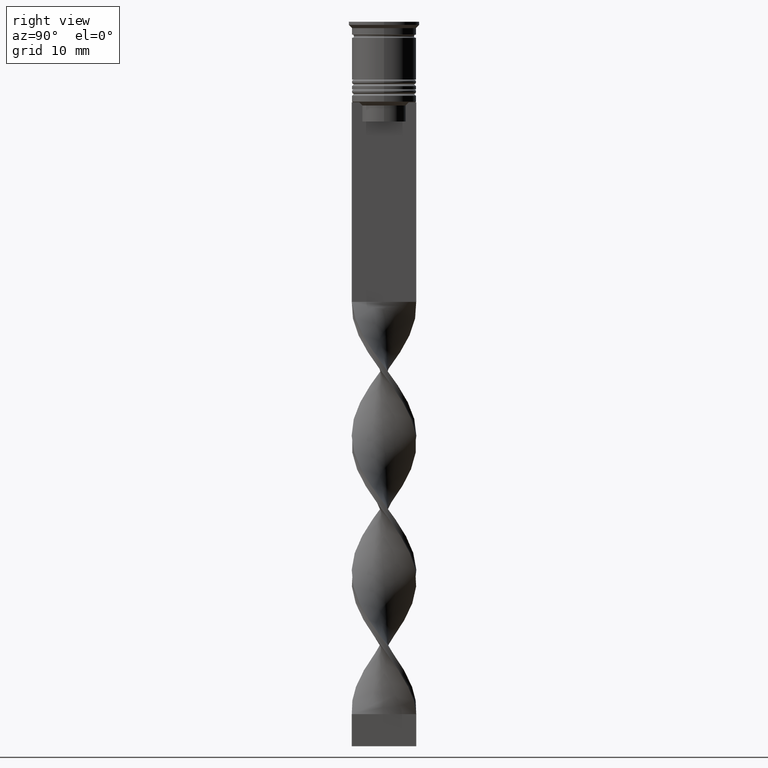
[diagram: clean part render]
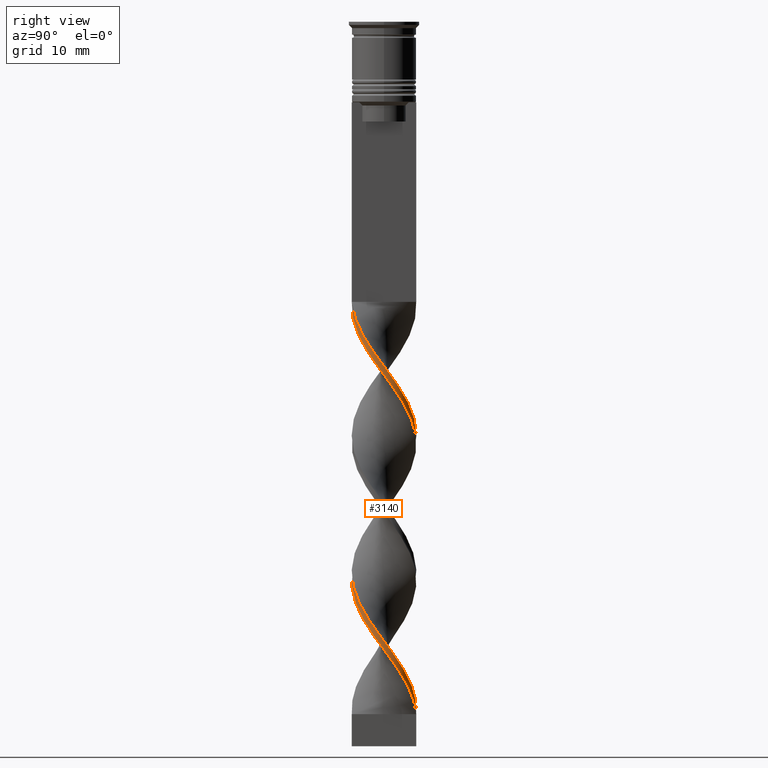
[diagram: same view with one face highlighted and labeled with its STEP entity id]
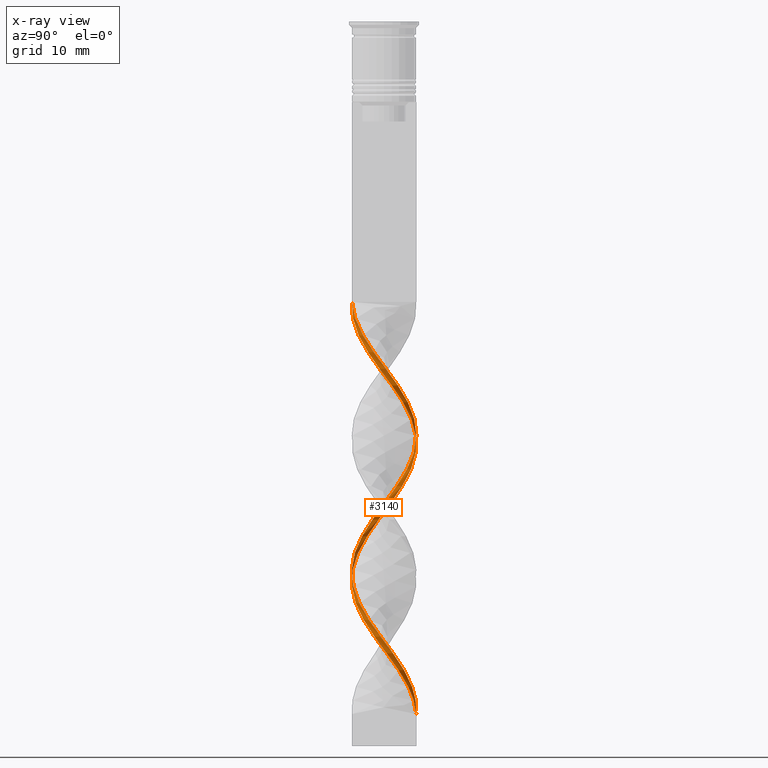
[diagram: x-ray of the same camera — body ghosted, the highlighted face saturated]
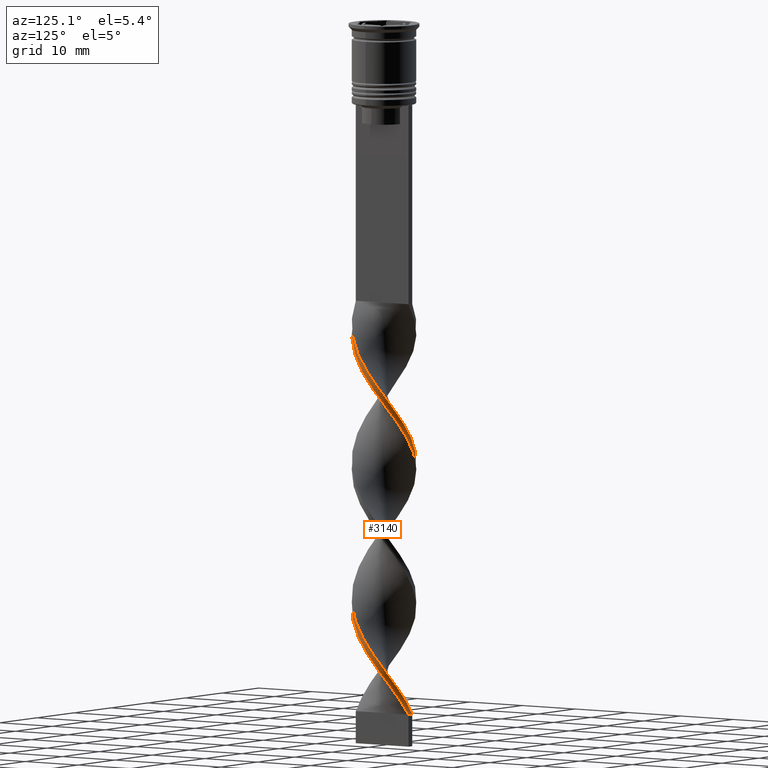
[diagram: same view with one face highlighted and labeled with its STEP entity id]
A machine part, right view. The second image highlights one B-rep face of the part: STEP entity #3140.
The next image is the same camera in x-ray: the body ghosted, the highlighted face saturated — about 0% of this face is hidden behind the body in this view.
A second angle (auxiliary view) of the same face is appended — the face is thin or edge-on in the first view.
In plain terms, the highlighted face is a freeform B-spline surface patch.
Its self-contained STEP definition (entity closure, byte-faithful):
#4 = CARTESIAN_POINT ( 'NONE',  ( 1.880887847392238132, 4.659641714287932501, -61.55128205128204399 ) ) ;
#5 = CARTESIAN_POINT ( 'NONE',  ( -3.436045048790596468, 3.716969558312887667, -70.57692307692306599 ) ) ;
#7 = CARTESIAN_POINT ( 'NONE',  ( -0.5000000000000000000, -4.999999999999999112, -43.50000000000000000 ) ) ;
#22 = CARTESIAN_POINT ( 'NONE',  ( 4.104038128678484831, 2.962961240565976428, -101.7564102564102484 ) ) ;
#42 = CARTESIAN_POINT ( 'NONE',  ( 0.5000000000000000000, -4.999999999999999112, -43.50000000000000000 ) ) ;
#61 = CARTESIAN_POINT ( 'NONE',  ( 3.830886956102703245, 3.251815666602606569, -100.9358974358974308 ) ) ;
#65 = CARTESIAN_POINT ( 'NONE',  ( -3.275699201900568625, -3.859023582904236527, -82.06410256410255499 ) ) ;
#78 = CARTESIAN_POINT ( 'NONE',  ( 4.104038128678483943, -2.962961240565977761, -91.91025641025643722 ) ) ;
#82 = CARTESIAN_POINT ( 'NONE',  ( -4.104038128678487496, -2.962961240565973764, -80.42307692307691980 ) ) ;
#88 = CARTESIAN_POINT ( 'NONE',  ( -2.941357917118426535, -4.074115069975901449, -81.24358974358973740 ) ) ;
#99 = CARTESIAN_POINT ( 'NONE',  ( 1.880887847392237244, -4.659641714287933389, -46.78205128205127750 ) ) ;
#104 = CARTESIAN_POINT ( 'NONE',  ( -2.256988544190328572, -4.530813501584091796, -83.70512820512820440 ) ) ;
#111 = CARTESIAN_POINT ( 'NONE',  ( 3.689868665289525396, -3.410992411735107588, -91.08974358974359120 ) ) ;
#121 = CARTESIAN_POINT ( 'NONE',  ( 4.497778769905805163, -2.240532556555385746, -51.70512820512820440 ) ) ;
#124 = CARTESIAN_POINT ( 'NONE',  ( 4.852383656948341617, 1.305516313869969469, -56.62820512820513130 ) ) ;
#130 = CARTESIAN_POINT ( 'NONE',  ( 3.830886956102703245, 3.251815666602606569, -58.26923076923076650 ) ) ;
#140 = CARTESIAN_POINT ( 'NONE',  ( 5.010902036907449286, -0.7163302668880181523, -95.19230769230769340 ) ) ;
#144 = CARTESIAN_POINT ( 'NONE',  ( 5.010902036907447510, 0.7163302668880174862, -98.47435897435896379 ) ) ;
#161 = CARTESIAN_POINT ( 'NONE',  ( 1.682049230150816088, 4.735051254986480274, -63.19230769230768630 ) ) ;
#174 = CARTESIAN_POINT ( 'NONE',  ( 4.903276030362607507, 1.099037838325641392, -54.98717948717948190 ) ) ;
#185 = CARTESIAN_POINT ( 'NONE',  ( 4.852383656948341617, 1.305516313869969469, -99.29487179487178139 ) ) ;
#206 = CARTESIAN_POINT ( 'NONE',  ( -0.4999999999999993339, 4.999999999999999112, -107.5000000000000000 ) ) ;
#238 = CARTESIAN_POINT ( 'NONE',  ( -3.830886956102703245, 3.251815666602607013, -71.39743589743588359 ) ) ;
#253 = CARTESIAN_POINT ( 'NONE',  ( 2.941357917118423870, -4.074115069975903225, -91.08974358974359120 ) ) ;
#271 = CARTESIAN_POINT ( 'NONE',  ( 0.1071099161113048398, 5.060710991611130360, -64.01282051282051100 ) ) ;
#273 = CARTESIAN_POINT ( 'NONE',  ( -5.010902036907449286, -0.7163302668880155988, -77.14102564102563520 ) ) ;
#291 = CARTESIAN_POINT ( 'NONE',  ( 3.275699201900567736, -3.859023582904237415, -47.60256410256408799 ) ) ;
#292 = CARTESIAN_POINT ( 'NONE',  ( -3.275699201900568625, -3.859023582904236527, -82.06410256410255499 ) ) ;
#307 = CARTESIAN_POINT ( 'NONE',  ( -2.446670785446251273, 4.431260581638920115, -68.93589743589743080 ) ) ;
#347 = CARTESIAN_POINT ( 'NONE',  ( 1.682049230150816088, 4.735051254986480274, -63.19230769230768630 ) ) ;
#360 = CARTESIAN_POINT ( 'NONE',  ( 5.023812710617931110, -0.1063289642275889874, -96.01282051282051100 ) ) ;
#363 = CARTESIAN_POINT ( 'NONE',  ( 5.010902036907447510, 0.7163302668880174862, -55.80769230769230660 ) ) ;
#368 = CARTESIAN_POINT ( 'NONE',  ( 1.682049230150814534, -4.735051254986480274, -45.14102564102563520 ) ) ;
#378 = CARTESIAN_POINT ( 'NONE',  ( 0.7111074127247624110, -4.974366919274038068, -45.14102564102563520 ) ) ;
#381 = CARTESIAN_POINT ( 'NONE',  ( 1.880887847392237244, -4.659641714287933389, -46.78205128205127750 ) ) ;
#385 = VERTEX_POINT ( 'NONE', #2832 ) ;
#387 = CARTESIAN_POINT ( 'NONE',  ( 4.104038128678484831, -2.962961240565978205, -49.24358974358974450 ) ) ;
#397 = CARTESIAN_POINT ( 'NONE',  ( 4.852383656948341617, -1.305516313869971246, -94.37179487179486159 ) ) ;
#403 = CARTESIAN_POINT ( 'NONE',  ( 4.225728863414809133, -2.786661774892328136, -50.88461538461537970 ) ) ;
#411 = CARTESIAN_POINT ( 'NONE',  ( 4.769828676396803857, 1.694403338218442689, -55.80769230769230660 ) ) ;
#420 = CARTESIAN_POINT ( 'NONE',  ( 2.446670785446252161, -4.431260581638920115, -47.60256410256408799 ) ) ;
#424 = CARTESIAN_POINT ( 'NONE',  ( -4.693865276989234836, -1.894702360851920231, -78.78205128205127039 ) ) ;
#430 = CARTESIAN_POINT ( 'NONE',  ( -1.682049230150812980, 4.735051254986481162, -66.47435897435896379 ) ) ;
#440 = CARTESIAN_POINT ( 'NONE',  ( 4.398951702833859834, 2.428831800708949995, -58.26923076923076650 ) ) ;
#449 = CARTESIAN_POINT ( 'NONE',  ( 4.225728863414809133, 2.786661774892327692, -57.44871794871794890 ) ) ;
#527 = CARTESIAN_POINT ( 'NONE',  ( 4.693865276989234836, -1.894702360851923340, -93.55128205128204399 ) ) ;
#530 = EDGE_LOOP ( 'NONE', ( #3200, #2994, #3588, #2436 ) ) ;
#542 = CARTESIAN_POINT ( 'NONE',  ( -0.7111074127247609677, 4.974366919274038956, -66.47435897435896379 ) ) ;
#554 = CARTESIAN_POINT ( 'NONE',  ( 4.104038128678483943, -2.962961240565977761, -49.24358974358973740 ) ) ;
#571 = CARTESIAN_POINT ( 'NONE',  ( 5.036723384328412934, -0.5036723384328417596, -96.83333333333332860 ) ) ;
#592 = CARTESIAN_POINT ( 'NONE',  ( 4.903276030362607507, 1.099037838325641392, -54.98717948717948190 ) ) ;
#593 = CARTESIAN_POINT ( 'NONE',  ( 4.903276030362607507, -1.099037838325642946, -96.01282051282051100 ) ) ;
#643 = CARTESIAN_POINT ( 'NONE',  ( -2.446670785446253493, -4.431260581638919227, -82.06410256410255499 ) ) ;
#648 = CARTESIAN_POINT ( 'NONE',  ( 2.446670785446252161, -4.431260581638919227, -47.60256410256409509 ) ) ;
#662 = CARTESIAN_POINT ( 'NONE',  ( -0.4999999999999993339, 4.999999999999999112, -107.5000000000000000 ) ) ;
#666 = CARTESIAN_POINT ( 'NONE',  ( -2.941357917118423870, 4.074115069975903225, -69.75641025641024839 ) ) ;
#671 = CARTESIAN_POINT ( 'NONE',  ( -1.107109916111301606, 4.939289008388868751, -65.65384615384614619 ) ) ;
#682 = CARTESIAN_POINT ( 'NONE',  ( -3.275699201900567736, 3.859023582904237415, -68.93589743589743080 ) ) ;
#687 = CARTESIAN_POINT ( 'NONE',  ( 3.436045048790597800, -3.716969558312886335, -91.91025641025643722 ) ) ;
#693 = CARTESIAN_POINT ( 'NONE',  ( -2.766343873045446600, 4.194918542244165494, -68.11538461538459899 ) ) ;
#705 = CARTESIAN_POINT ( 'NONE',  ( 4.769828676396803857, 1.694403338218442912, -98.47435897435896379 ) ) ;
#710 = CARTESIAN_POINT ( 'NONE',  ( 0.5000000000000006661, 4.999999999999999112, -64.83333333333332860 ) ) ;
#726 = CARTESIAN_POINT ( 'NONE',  ( 1.315104909338224326, 4.888022846936946664, -105.0384615384615330 ) ) ;
#729 = CARTESIAN_POINT ( 'NONE',  ( -1.682049230150818975, -4.735051254986478497, -84.52564102564103621 ) ) ;
#735 = CARTESIAN_POINT ( 'NONE',  ( -4.693865276989233060, 1.894702360851926004, -72.21794871794871540 ) ) ;
#736 = VERTEX_POINT ( 'NONE', #2180 ) ;
#742 = CARTESIAN_POINT ( 'NONE',  ( 3.275699201900568180, 3.859023582904236527, -60.73076923076922640 ) ) ;
#753 = CARTESIAN_POINT ( 'NONE',  ( 1.107109916111302717, -4.939289008388868751, -86.98717948717948900 ) ) ;
#765 = VECTOR ( 'NONE', #2116, 1000.000000000000000 ) ;
#796 = CARTESIAN_POINT ( 'NONE',  ( -4.225728863414807357, 2.786661774892329912, -72.21794871794871540 ) ) ;
#813 = CARTESIAN_POINT ( 'NONE',  ( 3.436045048790597800, -3.716969558312886335, -91.91025641025643722 ) ) ;
#819 = CARTESIAN_POINT ( 'NONE',  ( 3.830886956102703245, 3.251815666602606569, -100.9358974358974308 ) ) ;
#831 = CARTESIAN_POINT ( 'NONE',  ( 0.7111074127247642984, 4.974366919274038068, -63.19230769230768630 ) ) ;
#832 = CARTESIAN_POINT ( 'NONE',  ( -1.315104909338220551, 4.888022846936948440, -67.29487179487178139 ) ) ;
#848 = CARTESIAN_POINT ( 'NONE',  ( -2.256988544190325019, 4.530813501584093572, -67.29487179487178139 ) ) ;
#849 = CARTESIAN_POINT ( 'NONE',  ( -5.036723384328412934, 0.5036723384328424258, -75.49999999999998579 ) ) ;
#866 = CARTESIAN_POINT ( 'NONE',  ( 2.256988544190325907, -4.530813501584092684, -45.96153846153845279 ) ) ;
#867 = CARTESIAN_POINT ( 'NONE',  ( 1.682049230150816088, 4.735051254986480274, -105.8589743589743506 ) ) ;
#869 = CARTESIAN_POINT ( 'NONE',  ( 0.7111074127247624110, -4.974366919274038068, -45.14102564102563520 ) ) ;
#884 = CARTESIAN_POINT ( 'NONE',  ( 2.446670785446252605, 4.431260581638919227, -60.73076923076922640 ) ) ;
#918 = CARTESIAN_POINT ( 'NONE',  ( -0.1071099161113053949, -5.060710991611130360, -85.34615384615383959 ) ) ;
#923 = CARTESIAN_POINT ( 'NONE',  ( 1.107109916111304937, 4.939289008388868751, -64.01282051282051100 ) ) ;
#942 = CARTESIAN_POINT ( 'NONE',  ( -3.436045048790600909, -3.716969558312882782, -80.42307692307691980 ) ) ;
#947 = CARTESIAN_POINT ( 'NONE',  ( 5.023812710617931110, 0.1063289642275872526, -54.98717948717948190 ) ) ;
#953 = CARTESIAN_POINT ( 'NONE',  ( 3.275699201900567292, -3.859023582904237415, -90.26923076923077360 ) ) ;
#960 = CARTESIAN_POINT ( 'NONE',  ( 1.880887847392238132, 4.659641714287932501, -104.2179487179487012 ) ) ;
#964 = CARTESIAN_POINT ( 'NONE',  ( 1.315104909338222328, -4.888022846936947552, -88.62820512820512420 ) ) ;
#971 = CARTESIAN_POINT ( 'NONE',  ( -0.1071099161113053949, -5.060710991611129472, -85.34615384615385381 ) ) ;
#980 = CARTESIAN_POINT ( 'NONE',  ( 5.023812710617931110, 0.1063289642275872526, -54.98717948717948190 ) ) ;
#984 = CARTESIAN_POINT ( 'NONE',  ( 3.830886956102703245, -3.251815666602607013, -50.06410256410256210 ) ) ;
#990 = CARTESIAN_POINT ( 'NONE',  ( -5.036723384328413822, -0.5036723384328405384, -75.50000000000000000 ) ) ;
#1002 = CARTESIAN_POINT ( 'NONE',  ( 3.436045048790597800, -3.716969558312886335, -49.24358974358973740 ) ) ;
#1007 = CARTESIAN_POINT ( 'NONE',  ( 2.941357917118423870, -4.074115069975903225, -48.42307692307691269 ) ) ;
#1013 = CARTESIAN_POINT ( 'NONE',  ( 4.693865276989234836, -1.894702360851923340, -50.88461538461537970 ) ) ;
#1021 = CARTESIAN_POINT ( 'NONE',  ( 1.107109916111304715, 4.939289008388868751, -64.01282051282051100 ) ) ;
#1031 = CARTESIAN_POINT ( 'NONE',  ( -1.315104909338224548, -4.888022846936946664, -83.70512820512820440 ) ) ;
#1047 = EDGE_CURVE ( 'NONE', #1556, #736, #1882, .T. ) ;
#1048 = CARTESIAN_POINT ( 'NONE',  ( 4.852383656948341617, -1.305516313869971246, -94.37179487179486159 ) ) ;
#1064 = CARTESIAN_POINT ( 'NONE',  ( 5.036723384328413822, 0.5036723384328410935, -96.83333333333332860 ) ) ;
#1078 = CARTESIAN_POINT ( 'NONE',  ( 1.315104909338224104, 4.888022846936946664, -105.0384615384615188 ) ) ;
#1092 = CARTESIAN_POINT ( 'NONE',  ( -4.104038128678486608, -2.962961240565973764, -80.42307692307691980 ) ) ;
#1111 = CARTESIAN_POINT ( 'NONE',  ( 4.225728863414809133, 2.786661774892327248, -57.44871794871794890 ) ) ;
#1112 = CARTESIAN_POINT ( 'NONE',  ( 5.023812710617931110, 0.1063289642275872526, -97.65384615384614619 ) ) ;
#1149 = CARTESIAN_POINT ( 'NONE',  ( 1.315104909338224326, 4.888022846936946664, -62.37179487179486870 ) ) ;
#1150 = CARTESIAN_POINT ( 'NONE',  ( -4.769828676396803857, 1.694403338218443356, -73.85897435897436480 ) ) ;
#1166 = CARTESIAN_POINT ( 'NONE',  ( 1.682049230150814534, -4.735051254986480274, -45.14102564102563520 ) ) ;
#1167 = CARTESIAN_POINT ( 'NONE',  ( 2.766343873045447488, 4.194918542244164605, -104.2179487179487012 ) ) ;
#1187 = CARTESIAN_POINT ( 'NONE',  ( 3.689868665289525396, -3.410992411735107588, -48.42307692307691269 ) ) ;
#1205 = CARTESIAN_POINT ( 'NONE',  ( 4.398951702833859834, -2.428831800708950883, -92.73076923076922640 ) ) ;
#1208 = CARTESIAN_POINT ( 'NONE',  ( -3.436045048790596468, 3.716969558312887667, -70.57692307692306599 ) ) ;
#1221 = CARTESIAN_POINT ( 'NONE',  ( 4.903276030362607507, 1.099037838325641392, -97.65384615384614619 ) ) ;
#1225 = CARTESIAN_POINT ( 'NONE',  ( -1.107109916111305603, -4.939289008388868751, -85.34615384615385381 ) ) ;
#1232 = CARTESIAN_POINT ( 'NONE',  ( 2.766343873045447044, -4.194918542244165494, -89.44871794871794179 ) ) ;
#1242 = CARTESIAN_POINT ( 'NONE',  ( 4.225728863414809133, 2.786661774892327248, -100.1153846153846274 ) ) ;
#1246 = CARTESIAN_POINT ( 'NONE',  ( 4.769828676396802969, -1.694403338218443578, -95.19230769230769340 ) ) ;
#1254 = CARTESIAN_POINT ( 'NONE',  ( 0.1071099161113048537, 5.060710991611129472, -64.01282051282051100 ) ) ;
#1262 = CARTESIAN_POINT ( 'NONE',  ( 3.830886956102703245, -3.251815666602607013, -50.06410256410256210 ) ) ;
#1265 = CARTESIAN_POINT ( 'NONE',  ( 3.275699201900567736, 3.859023582904236527, -60.73076923076922640 ) ) ;
#1270 = CARTESIAN_POINT ( 'NONE',  ( 2.941357917118426091, 4.074115069975901449, -59.91025641025640880 ) ) ;
#1281 = CARTESIAN_POINT ( 'NONE',  ( 2.941357917118423870, -4.074115069975903225, -48.42307692307691269 ) ) ;
#1285 = CARTESIAN_POINT ( 'NONE',  ( 3.689868665289526728, 3.410992411735105811, -59.91025641025640880 ) ) ;
#1292 = CARTESIAN_POINT ( 'NONE',  ( -2.256988544190325019, 4.530813501584093572, -67.29487179487178139 ) ) ;
#1304 = CARTESIAN_POINT ( 'NONE',  ( 0.5000000000000006661, 4.999999999999999112, -64.83333333333332860 ) ) ;
#1314 = CARTESIAN_POINT ( 'NONE',  ( -4.497778769905805163, -2.240532556555384858, -77.96153846153845279 ) ) ;
#1333 = CARTESIAN_POINT ( 'NONE',  ( 4.903276030362607507, 1.099037838325641392, -97.65384615384614619 ) ) ;
#1379 = CARTESIAN_POINT ( 'NONE',  ( -4.497778769905805163, 2.240532556555386634, -73.03846153846153300 ) ) ;
#1393 = CARTESIAN_POINT ( 'NONE',  ( -4.693865276989234836, -1.894702360851920009, -78.78205128205127039 ) ) ;
#1414 = CARTESIAN_POINT ( 'NONE',  ( 0.1071099161113025638, -5.060710991611130360, -86.98717948717948900 ) ) ;
#1432 = CARTESIAN_POINT ( 'NONE',  ( 4.398951702833859834, -2.428831800708950883, -50.06410256410256210 ) ) ;
#1433 = CARTESIAN_POINT ( 'NONE',  ( 4.497778769905805163, -2.240532556555385746, -94.37179487179486159 ) ) ;
#1447 = CARTESIAN_POINT ( 'NONE',  ( 4.852383656948341617, 1.305516313869969469, -99.29487179487178139 ) ) ;
#1487 = CARTESIAN_POINT ( 'NONE',  ( -4.693865276989233060, 1.894702360851926226, -72.21794871794871540 ) ) ;
#1492 = CARTESIAN_POINT ( 'NONE',  ( -4.852383656948341617, -1.305516313869969913, -77.96153846153845279 ) ) ;
#1505 = CARTESIAN_POINT ( 'NONE',  ( -4.497778769905805163, -2.240532556555384858, -77.96153846153845279 ) ) ;
#1508 = CARTESIAN_POINT ( 'NONE',  ( 4.104038128678485720, 2.962961240565976428, -59.08974358974358410 ) ) ;
#1514 = CARTESIAN_POINT ( 'NONE',  ( -4.104038128678483943, 2.962961240565979537, -70.57692307692306599 ) ) ;
#1525 = CARTESIAN_POINT ( 'NONE',  ( 1.315104909338222106, -4.888022846936947552, -45.96153846153845279 ) ) ;
#1526 = CARTESIAN_POINT ( 'NONE',  ( 0.1666666666666673513, 4.999999999999999112, -107.5000000000000000 ) ) ;
#1530 = CARTESIAN_POINT ( 'NONE',  ( 4.225728863414809133, -2.786661774892328136, -93.55128205128204399 ) ) ;
#1538 = CARTESIAN_POINT ( 'NONE',  ( -1.880887847392241019, -4.659641714287931613, -82.88461538461537259 ) ) ;
#1549 = CARTESIAN_POINT ( 'NONE',  ( -4.852383656948341617, 1.305516313869971912, -73.03846153846153300 ) ) ;
#1552 = CARTESIAN_POINT ( 'NONE',  ( -0.7111074127247609677, 4.974366919274038956, -66.47435897435896379 ) ) ;
#1556 = VERTEX_POINT ( 'NONE', #2864 ) ;
#1558 = CARTESIAN_POINT ( 'NONE',  ( -0.7111074127247671850, -4.974366919274038068, -84.52564102564103621 ) ) ;
#1568 = CARTESIAN_POINT ( 'NONE',  ( -1.880887847392241019, -4.659641714287931613, -82.88461538461537259 ) ) ;
#1571 = CARTESIAN_POINT ( 'NONE',  ( -3.689868665289527172, -3.410992411735105367, -81.24358974358973740 ) ) ;
#1577 = CARTESIAN_POINT ( 'NONE',  ( 3.436045048790599132, 3.716969558312884558, -59.08974358974358410 ) ) ;
#1586 = CARTESIAN_POINT ( 'NONE',  ( 2.256988544190327683, 4.530813501584091796, -62.37179487179486870 ) ) ;
#1597 = EDGE_CURVE ( 'NONE', #736, #385, #3462, .T. ) ;
#1598 = CARTESIAN_POINT ( 'NONE',  ( -4.769828676396803857, -1.694403338218441135, -77.14102564102563520 ) ) ;
#1668 = CARTESIAN_POINT ( 'NONE',  ( -4.398951702833860722, -2.428831800708949551, -79.60256410256410220 ) ) ;
#1674 = CARTESIAN_POINT ( 'NONE',  ( 1.880887847392238132, 4.659641714287932501, -104.2179487179487012 ) ) ;
#1685 = CARTESIAN_POINT ( 'NONE',  ( 1.880887847392237244, -4.659641714287933389, -89.44871794871794179 ) ) ;
#1698 = CARTESIAN_POINT ( 'NONE',  ( 4.693865276989234836, -1.894702360851923117, -50.88461538461538680 ) ) ;
#1717 = CARTESIAN_POINT ( 'NONE',  ( -2.941357917118423870, 4.074115069975903225, -69.75641025641024839 ) ) ;
#1734 = CARTESIAN_POINT ( 'NONE',  ( 4.497778769905805163, 2.240532556555384414, -56.62820512820513130 ) ) ;
#1735 = CARTESIAN_POINT ( 'NONE',  ( 0.5000000000000006661, 4.999999999999999112, -107.5000000000000000 ) ) ;
#1787 = CARTESIAN_POINT ( 'NONE',  ( -2.766343873045446600, 4.194918542244165494, -68.11538461538459899 ) ) ;
#1790 = CARTESIAN_POINT ( 'NONE',  ( -3.830886956102703245, 3.251815666602607013, -71.39743589743588359 ) ) ;
#1806 = CARTESIAN_POINT ( 'NONE',  ( 0.1071099161113025638, -5.060710991611130360, -44.32051282051282470 ) ) ;
#1809 = CARTESIAN_POINT ( 'NONE',  ( 4.769828676396802969, -1.694403338218443578, -52.52564102564102910 ) ) ;
#1814 = CARTESIAN_POINT ( 'NONE',  ( -3.275699201900567292, 3.859023582904237415, -68.93589743589743080 ) ) ;
#1825 = CARTESIAN_POINT ( 'NONE',  ( -2.941357917118426535, -4.074115069975901449, -81.24358974358973740 ) ) ;
#1829 = CARTESIAN_POINT ( 'NONE',  ( 4.903276030362607507, -1.099037838325642946, -96.01282051282051100 ) ) ;
#1836 = CARTESIAN_POINT ( 'NONE',  ( -2.446670785446253493, -4.431260581638918339, -82.06410256410255499 ) ) ;
#1846 = CARTESIAN_POINT ( 'NONE',  ( -0.5000000000000000000, -4.999999999999999112, -43.50000000000000000 ) ) ;
#1849 = CARTESIAN_POINT ( 'NONE',  ( -4.497778769905805163, 2.240532556555386634, -73.03846153846153300 ) ) ;
#1855 = CARTESIAN_POINT ( 'NONE',  ( 5.023812710617931110, -0.1063289642275889874, -53.34615384615383959 ) ) ;
#1864 = CARTESIAN_POINT ( 'NONE',  ( 4.769828676396802969, -1.694403338218443800, -52.52564102564103621 ) ) ;
#1869 = CARTESIAN_POINT ( 'NONE',  ( 0.5000000000000006661, 4.999999999999999112, -107.5000000000000000 ) ) ;
#1875 = CARTESIAN_POINT ( 'NONE',  ( 1.107109916111302717, -4.939289008388868751, -44.32051282051282470 ) ) ;
#1882 = LINE ( 'NONE', #2735, #765 ) ;
#1885 = CARTESIAN_POINT ( 'NONE',  ( 4.693865276989234836, 1.894702360851922673, -57.44871794871794890 ) ) ;
#1890 = CARTESIAN_POINT ( 'NONE',  ( 1.682049230150816088, 4.735051254986480274, -105.8589743589743506 ) ) ;
#1896 = CARTESIAN_POINT ( 'NONE',  ( -4.903276030362609283, -1.099037838325638727, -76.32051282051281760 ) ) ;
#1924 = CARTESIAN_POINT ( 'NONE',  ( 4.398951702833859834, 2.428831800708949995, -100.9358974358974308 ) ) ;
#1959 = CARTESIAN_POINT ( 'NONE',  ( 3.830886956102703245, -3.251815666602607013, -92.73076923076922640 ) ) ;
#1976 = CARTESIAN_POINT ( 'NONE',  ( 3.689868665289526728, 3.410992411735105811, -102.5769230769230660 ) ) ;
#1994 = CARTESIAN_POINT ( 'NONE',  ( -0.5000000000000000000, -4.999999999999999112, -86.16666666666667140 ) ) ;
#2012 = CARTESIAN_POINT ( 'NONE',  ( 4.769828676396802969, -1.694403338218443800, -95.19230769230769340 ) ) ;
#2030 = CARTESIAN_POINT ( 'NONE',  ( -1.107109916111301828, 4.939289008388868751, -65.65384615384614619 ) ) ;
#2059 = CARTESIAN_POINT ( 'NONE',  ( 4.693865276989234836, -1.894702360851923117, -93.55128205128204399 ) ) ;
#2064 = CARTESIAN_POINT ( 'NONE',  ( -0.1071099161113013842, 5.060710991611129472, -65.65384615384614619 ) ) ;
#2082 = CARTESIAN_POINT ( 'NONE',  ( 0.1071099161113048398, 5.060710991611130360, -106.6794871794871682 ) ) ;
#2086 = CARTESIAN_POINT ( 'NONE',  ( 4.693865276989234836, 1.894702360851922895, -57.44871794871794890 ) ) ;
#2100 = CARTESIAN_POINT ( 'NONE',  ( -4.769828676396804745, -1.694403338218441357, -77.14102564102563520 ) ) ;
#2101 = CARTESIAN_POINT ( 'NONE',  ( -0.4999999999999993339, 4.999999999999999112, -107.5000000000000000 ) ) ;
#2105 = CARTESIAN_POINT ( 'NONE',  ( 2.941357917118423870, -4.074115069975903225, -91.08974358974359120 ) ) ;
#2110 = CARTESIAN_POINT ( 'NONE',  ( -5.010902036907447510, 0.7163302668880177082, -73.85897435897436480 ) ) ;
#2116 = DIRECTION ( 'NONE',  ( -1.000000000000000000, 0.000000000000000000, 0.000000000000000000 ) ) ;
#2121 = CARTESIAN_POINT ( 'NONE',  ( -5.023812710617931110, 0.1063289642275907221, -74.67948717948718240 ) ) ;
#2124 = CARTESIAN_POINT ( 'NONE',  ( 4.903276030362607507, -1.099037838325642946, -53.34615384615383959 ) ) ;
#2131 = CARTESIAN_POINT ( 'NONE',  ( 1.682049230150814534, -4.735051254986480274, -87.80769230769230660 ) ) ;
#2144 = CARTESIAN_POINT ( 'NONE',  ( 1.682049230150814534, -4.735051254986480274, -87.80769230769230660 ) ) ;
#2148 = CARTESIAN_POINT ( 'NONE',  ( 3.436045048790597800, -3.716969558312886335, -49.24358974358974450 ) ) ;
#2153 = CARTESIAN_POINT ( 'NONE',  ( -0.4999999999999993339, 4.999999999999999112, -64.83333333333332860 ) ) ;
#2160 = CARTESIAN_POINT ( 'NONE',  ( 3.689868665289526728, 3.410992411735105811, -59.91025641025640880 ) ) ;
#2169 = CARTESIAN_POINT ( 'NONE',  ( 2.766343873045447044, -4.194918542244165494, -46.78205128205127750 ) ) ;
#2174 = B_SPLINE_CURVE_WITH_KNOTS ( 'NONE', 3,
 ( #2101, #3177, #1526, #3238 ),
 .UNSPECIFIED., .F., .F.,
 ( 4, 4 ),
 ( 0.000000000000000000, 1.000000000000000000 ),
 .UNSPECIFIED. ) ;
#2180 = CARTESIAN_POINT ( 'NONE',  ( -0.5000000000000000000, -4.999999999999999112, -43.50000000000000000 ) ) ;
#2186 = CARTESIAN_POINT ( 'NONE',  ( 4.769828676396803857, 1.694403338218442689, -98.47435897435896379 ) ) ;
#2233 = CARTESIAN_POINT ( 'NONE',  ( -2.256988544190328128, -4.530813501584091796, -83.70512820512820440 ) ) ;
#2252 = CARTESIAN_POINT ( 'NONE',  ( 5.010902036907448398, 0.7163302668880174862, -98.47435897435896379 ) ) ;
#2258 = CARTESIAN_POINT ( 'NONE',  ( 0.7111074127247642984, 4.974366919274038068, -105.8589743589743506 ) ) ;
#2267 = CARTESIAN_POINT ( 'NONE',  ( 4.852383656948341617, -1.305516313869971246, -51.70512820512820440 ) ) ;
#2281 = CARTESIAN_POINT ( 'NONE',  ( 1.107109916111302717, -4.939289008388868751, -44.32051282051282470 ) ) ;
#2282 = CARTESIAN_POINT ( 'NONE',  ( -2.766343873045450152, -4.194918542244163717, -82.88461538461537259 ) ) ;
#2287 = CARTESIAN_POINT ( 'NONE',  ( 0.1071099161113025777, -5.060710991611129472, -44.32051282051282470 ) ) ;
#2302 = CARTESIAN_POINT ( 'NONE',  ( 4.769828676396803857, 1.694403338218442912, -55.80769230769230660 ) ) ;
#2320 = CARTESIAN_POINT ( 'NONE',  ( 5.010902036907449286, -0.7163302668880181523, -52.52564102564103621 ) ) ;
#2336 = CARTESIAN_POINT ( 'NONE',  ( 2.941357917118426091, 4.074115069975901449, -102.5769230769230660 ) ) ;
#2341 = CARTESIAN_POINT ( 'NONE',  ( -2.766343873045450152, -4.194918542244163717, -82.88461538461537259 ) ) ;
#2355 = CARTESIAN_POINT ( 'NONE',  ( 0.7111074127247642984, 4.974366919274038068, -105.8589743589743506 ) ) ;
#2360 = CARTESIAN_POINT ( 'NONE',  ( 4.398951702833859834, 2.428831800708949995, -58.26923076923076650 ) ) ;
#2368 = CARTESIAN_POINT ( 'NONE',  ( 4.497778769905805163, 2.240532556555384414, -56.62820512820513130 ) ) ;
#2375 = CARTESIAN_POINT ( 'NONE',  ( -5.010902036907448398, 0.7163302668880177082, -73.85897435897436480 ) ) ;
#2378 = CARTESIAN_POINT ( 'NONE',  ( -4.225728863414807357, 2.786661774892330357, -72.21794871794871540 ) ) ;
#2384 = CARTESIAN_POINT ( 'NONE',  ( 4.104038128678484831, -2.962961240565978205, -91.91025641025643722 ) ) ;
#2391 = CARTESIAN_POINT ( 'NONE',  ( 4.903276030362607507, -1.099037838325642946, -53.34615384615383959 ) ) ;
#2394 = CARTESIAN_POINT ( 'NONE',  ( -5.036723384328413822, 0.5036723384328424258, -75.50000000000000000 ) ) ;
#2400 = CARTESIAN_POINT ( 'NONE',  ( 0.7111074127247642984, 4.974366919274038068, -63.19230769230768630 ) ) ;
#2410 = CARTESIAN_POINT ( 'NONE',  ( 3.275699201900567736, -3.859023582904237415, -90.26923076923075939 ) ) ;
#2414 = CARTESIAN_POINT ( 'NONE',  ( 0.1071099161113025777, -5.060710991611129472, -86.98717948717948900 ) ) ;
#2421 = CARTESIAN_POINT ( 'NONE',  ( -4.852383656948341617, 1.305516313869971912, -73.03846153846153300 ) ) ;
#2432 = CARTESIAN_POINT ( 'NONE',  ( 5.010902036907448398, 0.7163302668880174862, -55.80769230769230660 ) ) ;
#2436 = ORIENTED_EDGE ( 'NONE', *, *, #2558, .F. ) ;
#2442 = CARTESIAN_POINT ( 'NONE',  ( -4.225728863414810910, -2.786661774892325028, -78.78205128205127039 ) ) ;
#2470 = CARTESIAN_POINT ( 'NONE',  ( 2.256988544190328128, 4.530813501584091796, -105.0384615384615188 ) ) ;
#2491 = CARTESIAN_POINT ( 'NONE',  ( 3.689868665289526728, 3.410992411735105811, -102.5769230769230660 ) ) ;
#2496 = CARTESIAN_POINT ( 'NONE',  ( 4.497778769905805163, 2.240532556555384414, -99.29487179487178139 ) ) ;
#2507 = CARTESIAN_POINT ( 'NONE',  ( -4.903276030362607507, 1.099037838325644723, -74.67948717948718240 ) ) ;
#2510 = CARTESIAN_POINT ( 'NONE',  ( 2.941357917118426091, 4.074115069975901449, -102.5769230769230660 ) ) ;
#2522 = CARTESIAN_POINT ( 'NONE',  ( 5.036723384328412934, 0.5036723384328410935, -54.16666666666665719 ) ) ;
#2523 = CARTESIAN_POINT ( 'NONE',  ( 4.225728863414809133, -2.786661774892327692, -93.55128205128204399 ) ) ;
#2544 = CARTESIAN_POINT ( 'NONE',  ( -0.4999999999999993339, 4.999999999999999112, -64.83333333333332860 ) ) ;
#2558 = EDGE_CURVE ( 'NONE', #1556, #2682, #2574, .T. ) ;
#2561 = CARTESIAN_POINT ( 'NONE',  ( 2.941357917118426091, 4.074115069975901449, -59.91025641025640880 ) ) ;
#2563 = CARTESIAN_POINT ( 'NONE',  ( 4.398951702833859834, 2.428831800708949995, -100.9358974358974308 ) ) ;
#2574 =( BOUNDED_CURVE ( )  B_SPLINE_CURVE ( 2, ( #3005, #1875, #368, #2944, #2169, #3226, #3546, #387, #3269, #1013, #3529, #3511, #1855, #2727, #174, #411, #2368, #449, #130, #1577, #1270, #3248, #2704, #2986, #2400, #1254, #2153, #671, #430, #1292, #693, #1814, #3288, #1514, #3309, #735, #2421, #2110, #3568, #990, #1896, #1598, #1314, #2442, #2967, #3586, #88, #1836, #1538, #1031, #1558, #971, #2665, #753, #2131, #2643, #1232, #953, #111, #2384, #2685, #527, #1048, #3638, #3343, #1064, #1333, #2186, #2496, #3653, #819, #3327, #2510, #2799, #1674, #1078, #2258, #3376, #206 ),
 .UNSPECIFIED., .F., .T. ) 
 B_SPLINE_CURVE_WITH_KNOTS ( ( 3, 2, 2, 2, 2, 2, 2, 2, 2, 2, 2, 2, 2, 2, 2, 2, 2, 2, 2, 2, 2, 2, 2, 2, 2, 2, 2, 2, 2, 2, 2, 2, 2, 2, 2, 2, 2, 2, 2, 3 ),
 ( 0.000000000000000000, 0.01923076923076923184, 0.03846153846153846367, 0.05769230769230768857, 0.07692307692307692735, 0.09615384615384615918, 0.1153846153846153771, 0.1346153846153846090, 0.1538461538461538547, 0.1730769230769230449, 0.1923076923076923184, 0.2115384615384615363, 0.2307692307692307543, 0.2500000000000000000, 0.2692307692307692180, 0.2884615384615384359, 0.3076923076923077094, 0.3269230769230769273, 0.3461538461538460898, 0.3653846153846153633, 0.3846153846153846367, 0.4038461538461539102, 0.4230769230769230727, 0.4423076923076922906, 0.4615384615384615086, 0.4807692307692307820, 0.5000000000000000000, 0.5192307692307692735, 0.5384615384615384359, 0.5576923076923077094, 0.5769230769230768718, 0.5961538461538461453, 0.6153846153846154188, 0.6346153846153845812, 0.6538461538461538547, 0.6730769230769230171, 0.6923076923076921796, 0.7115384615384615641, 0.7307692307692307265, 0.7500000000000000000 ),
 .UNSPECIFIED. ) 
 CURVE ( )  GEOMETRIC_REPRESENTATION_ITEM ( )  RATIONAL_B_SPLINE_CURVE ( ( 1.000000000000000000, 0.9927088740980539727, 1.000000000000000000, 0.9927088740980539727, 1.000000000000000000, 0.9927088740980539727, 1.000000000000000000, 0.9927088740980539727, 1.000000000000000000, 0.9927088740980539727, 1.000000000000000000, 0.9927088740980539727, 1.000000000000000000, 0.9927088740980539727, 1.000000000000000000, 0.9927088740980539727, 1.000000000000000000, 0.9927088740980539727, 1.000000000000000000, 0.9927088740980539727, 1.000000000000000000, 0.9927088740980539727, 1.000000000000000000, 0.9927088740980539727, 1.000000000000000000, 0.9927088740980539727, 1.000000000000000000, 0.9927088740980539727, 1.000000000000000000, 0.9927088740980539727, 1.000000000000000000, 0.9927088740980539727, 1.000000000000000000, 0.9927088740980539727, 1.000000000000000000, 0.9927088740980539727, 1.000000000000000000, 0.9927088740980539727, 1.000000000000000000, 0.9927088740980539727, 1.000000000000000000, 0.9927088740980539727, 1.000000000000000000, 0.9927088740980539727, 1.000000000000000000, 0.9927088740980539727, 1.000000000000000000, 0.9927088740980539727, 1.000000000000000000, 0.9927088740980539727, 1.000000000000000000, 0.9927088740980539727, 1.000000000000000000, 0.9927088740980539727, 1.000000000000000000, 0.9927088740980539727, 1.000000000000000000, 0.9927088740980539727, 1.000000000000000000, 0.9927088740980539727, 1.000000000000000000, 0.9927088740980539727, 1.000000000000000000, 0.9927088740980539727, 1.000000000000000000, 0.9927088740980539727, 1.000000000000000000, 0.9927088740980539727, 1.000000000000000000, 0.9927088740980539727, 1.000000000000000000, 0.9927088740980539727, 1.000000000000000000, 0.9927088740980539727, 1.000000000000000000, 0.9927088740980539727, 1.000000000000000000, 0.9927088740980539727, 1.000000000000000000 ) ) 
 REPRESENTATION_ITEM ( '' )  );
#2578 = CARTESIAN_POINT ( 'NONE',  ( 0.7111074127247624110, -4.974366919274038068, -87.80769230769230660 ) ) ;
#2616 = CARTESIAN_POINT ( 'NONE',  ( -3.830886956102704577, -3.251815666602606125, -79.60256410256410220 ) ) ;
#2619 = CARTESIAN_POINT ( 'NONE',  ( 5.036723384328413822, -0.5036723384328417596, -54.16666666666666430 ) ) ;
#2634 = CARTESIAN_POINT ( 'NONE',  ( 5.036723384328412934, 0.5036723384328410935, -96.83333333333332860 ) ) ;
#2637 = CARTESIAN_POINT ( 'NONE',  ( -5.010902036907448398, -0.7163302668880155988, -77.14102564102563520 ) ) ;
#2643 = CARTESIAN_POINT ( 'NONE',  ( 2.256988544190326351, -4.530813501584092684, -88.62820512820512420 ) ) ;
#2653 = CARTESIAN_POINT ( 'NONE',  ( 4.497778769905805163, 2.240532556555384414, -99.29487179487178139 ) ) ;
#2659 = CARTESIAN_POINT ( 'NONE',  ( 4.497778769905805163, -2.240532556555385746, -94.37179487179486159 ) ) ;
#2665 = CARTESIAN_POINT ( 'NONE',  ( 0.5000000000000000000, -4.999999999999999112, -86.16666666666667140 ) ) ;
#2674 = CARTESIAN_POINT ( 'NONE',  ( 3.436045048790599132, 3.716969558312884558, -101.7564102564102484 ) ) ;
#2678 = CARTESIAN_POINT ( 'NONE',  ( -5.023812710617931110, -0.1063289642275845326, -76.32051282051281760 ) ) ;
#2682 = VERTEX_POINT ( 'NONE', #2814 ) ;
#2685 = CARTESIAN_POINT ( 'NONE',  ( 4.398951702833859834, -2.428831800708950883, -92.73076923076922640 ) ) ;
#2694 = CARTESIAN_POINT ( 'NONE',  ( 2.256988544190325907, -4.530813501584092684, -88.62820512820513841 ) ) ;
#2699 = CARTESIAN_POINT ( 'NONE',  ( 5.023812710617931110, 0.1063289642275872526, -97.65384615384614619 ) ) ;
#2704 = CARTESIAN_POINT ( 'NONE',  ( 1.880887847392238132, 4.659641714287932501, -61.55128205128204399 ) ) ;
#2715 = CARTESIAN_POINT ( 'NONE',  ( 4.852383656948341617, 1.305516313869969469, -56.62820512820513130 ) ) ;
#2727 = CARTESIAN_POINT ( 'NONE',  ( 5.036723384328413822, 0.5036723384328410935, -54.16666666666666430 ) ) ;
#2735 = CARTESIAN_POINT ( 'NONE',  ( 0.5000000000000000000, -4.999999999999999112, -43.50000000000000000 ) ) ;
#2758 = CARTESIAN_POINT ( 'NONE',  ( 4.104038128678485720, 2.962961240565976428, -101.7564102564102484 ) ) ;
#2799 = CARTESIAN_POINT ( 'NONE',  ( 2.446670785446252605, 4.431260581638918339, -103.3974358974358836 ) ) ;
#2811 = CARTESIAN_POINT ( 'NONE',  ( -1.880887847392236800, 4.659641714287933389, -68.11538461538459899 ) ) ;
#2814 = CARTESIAN_POINT ( 'NONE',  ( -0.4999999999999993339, 4.999999999999999112, -107.5000000000000000 ) ) ;
#2823 = CARTESIAN_POINT ( 'NONE',  ( 3.830886956102703245, 3.251815666602606569, -58.26923076923076650 ) ) ;
#2825 = CARTESIAN_POINT ( 'NONE',  ( -3.689868665289527172, -3.410992411735105367, -81.24358974358973740 ) ) ;
#2832 = CARTESIAN_POINT ( 'NONE',  ( 0.5000000000000006661, 4.999999999999999112, -107.5000000000000000 ) ) ;
#2847 = CARTESIAN_POINT ( 'NONE',  ( -1.682049230150818975, -4.735051254986478497, -84.52564102564103621 ) ) ;
#2864 = CARTESIAN_POINT ( 'NONE',  ( 0.5000000000000000000, -4.999999999999999112, -43.50000000000000000 ) ) ;
#2898 = FACE_OUTER_BOUND ( 'NONE', #530, .T. ) ;
#2903 = CARTESIAN_POINT ( 'NONE',  ( 3.830886956102703245, -3.251815666602607013, -92.73076923076922640 ) ) ;
#2917 = CARTESIAN_POINT ( 'NONE',  ( 3.689868665289525396, -3.410992411735107588, -91.08974358974359120 ) ) ;
#2920 = CARTESIAN_POINT ( 'NONE',  ( -4.903276030362607507, 1.099037838325644723, -74.67948717948718240 ) ) ;
#2934 = CARTESIAN_POINT ( 'NONE',  ( -4.903276030362609283, -1.099037838325638727, -76.32051282051281760 ) ) ;
#2937 = CARTESIAN_POINT ( 'NONE',  ( 2.446670785446252161, -4.431260581638919227, -90.26923076923077360 ) ) ;
#2944 = CARTESIAN_POINT ( 'NONE',  ( 2.256988544190326351, -4.530813501584092684, -45.96153846153845990 ) ) ;
#2955 = CARTESIAN_POINT ( 'NONE',  ( -4.104038128678483055, 2.962961240565979093, -70.57692307692306599 ) ) ;
#2960 = CARTESIAN_POINT ( 'NONE',  ( 5.036723384328413822, -0.5036723384328417596, -96.83333333333332860 ) ) ;
#2967 = CARTESIAN_POINT ( 'NONE',  ( -3.830886956102704577, -3.251815666602606125, -79.60256410256410220 ) ) ;
#2977 = CARTESIAN_POINT ( 'NONE',  ( 0.5000000000000000000, -4.999999999999999112, -86.16666666666667140 ) ) ;
#2980 = CARTESIAN_POINT ( 'NONE',  ( -4.769828676396803857, 1.694403338218443134, -73.85897435897436480 ) ) ;
#2986 = CARTESIAN_POINT ( 'NONE',  ( 1.315104909338224104, 4.888022846936946664, -62.37179487179486870 ) ) ;
#2994 = ORIENTED_EDGE ( 'NONE', *, *, #1597, .T. ) ;
#2995 = CARTESIAN_POINT ( 'NONE',  ( -3.689868665289524952, 3.410992411735108476, -69.75641025641024839 ) ) ;
#3005 = CARTESIAN_POINT ( 'NONE',  ( 0.5000000000000000000, -4.999999999999999112, -43.50000000000000000 ) ) ;
#3093 = CARTESIAN_POINT ( 'NONE',  ( -0.1071099161113013842, 5.060710991611130360, -65.65384615384614619 ) ) ;
#3108 = CARTESIAN_POINT ( 'NONE',  ( 3.275699201900568180, 3.859023582904236527, -103.3974358974358694 ) ) ;
#3127 = CARTESIAN_POINT ( 'NONE',  ( -1.107109916111305381, -4.939289008388868751, -85.34615384615383959 ) ) ;
#3140 = ADVANCED_FACE ( 'NONE', ( #2898 ), #3348, .T. ) ;
#3147 = CARTESIAN_POINT ( 'NONE',  ( 1.107109916111304715, 4.939289008388868751, -106.6794871794871682 ) ) ;
#3149 = CARTESIAN_POINT ( 'NONE',  ( 1.315104909338222328, -4.888022846936947552, -45.96153846153845990 ) ) ;
#3177 = CARTESIAN_POINT ( 'NONE',  ( -0.1666666666666660468, 4.999999999999999112, -107.5000000000000000 ) ) ;
#3198 = CARTESIAN_POINT ( 'NONE',  ( 2.766343873045447044, -4.194918542244165494, -89.44871794871794179 ) ) ;
#3200 = ORIENTED_EDGE ( 'NONE', *, *, #1047, .T. ) ;
#3202 = CARTESIAN_POINT ( 'NONE',  ( -1.315104909338220551, 4.888022846936948440, -67.29487179487178139 ) ) ;
#3216 = CARTESIAN_POINT ( 'NONE',  ( 1.107109916111302717, -4.939289008388868751, -86.98717948717948900 ) ) ;
#3219 = CARTESIAN_POINT ( 'NONE',  ( -2.446670785446251273, 4.431260581638919227, -68.93589743589743080 ) ) ;
#3226 = CARTESIAN_POINT ( 'NONE',  ( 3.275699201900567292, -3.859023582904237415, -47.60256410256409509 ) ) ;
#3237 = CARTESIAN_POINT ( 'NONE',  ( -4.225728863414810910, -2.786661774892325028, -78.78205128205127039 ) ) ;
#3238 = CARTESIAN_POINT ( 'NONE',  ( 0.5000000000000006661, 4.999999999999999112, -107.5000000000000000 ) ) ;
#3241 = CARTESIAN_POINT ( 'NONE',  ( -0.5000000000000000000, -4.999999999999999112, -86.16666666666667140 ) ) ;
#3248 = CARTESIAN_POINT ( 'NONE',  ( 2.446670785446252605, 4.431260581638918339, -60.73076923076922640 ) ) ;
#3258 = CARTESIAN_POINT ( 'NONE',  ( -5.036723384328412934, -0.5036723384328404274, -75.49999999999998579 ) ) ;
#3262 = CARTESIAN_POINT ( 'NONE',  ( 2.766343873045447488, 4.194918542244164605, -61.55128205128204399 ) ) ;
#3269 = CARTESIAN_POINT ( 'NONE',  ( 4.398951702833859834, -2.428831800708950883, -50.06410256410256210 ) ) ;
#3278 = CARTESIAN_POINT ( 'NONE',  ( -1.315104909338224770, -4.888022846936946664, -83.70512820512820440 ) ) ;
#3282 = CARTESIAN_POINT ( 'NONE',  ( -4.398951702833860722, -2.428831800708949551, -79.60256410256410220 ) ) ;
#3288 = CARTESIAN_POINT ( 'NONE',  ( -3.689868665289524952, 3.410992411735108476, -69.75641025641024839 ) ) ;
#3296 = CARTESIAN_POINT ( 'NONE',  ( 4.104038128678484831, 2.962961240565976428, -59.08974358974359120 ) ) ;
#3309 = CARTESIAN_POINT ( 'NONE',  ( -4.398951702833859834, 2.428831800708950883, -71.39743589743588359 ) ) ;
#3314 = EDGE_CURVE ( 'NONE', #2682, #385, #2174, .T. ) ;
#3320 = CARTESIAN_POINT ( 'NONE',  ( 2.766343873045447488, 4.194918542244164605, -104.2179487179487012 ) ) ;
#3327 = CARTESIAN_POINT ( 'NONE',  ( 3.436045048790599132, 3.716969558312884558, -101.7564102564102484 ) ) ;
#3343 = CARTESIAN_POINT ( 'NONE',  ( 5.023812710617931110, -0.1063289642275889874, -96.01282051282051100 ) ) ;
#3348 =( BOUNDED_SURFACE ( )  B_SPLINE_SURFACE ( 1, 2, ( 
 ( #42, #2281, #1166, #866, #3391, #291, #1187, #554, #1432, #1698, #2267, #2320, #3464, #2522, #592, #2302, #1734, #1111, #2823, #3444, #2561, #884, #4, #1149, #831, #271, #2544, #2030, #3408, #848, #1787, #682, #2995, #2955, #3496, #1487, #1549, #2375, #2121, #3258, #2934, #2100, #1505, #3237, #2616, #942, #1825, #643, #1568, #3278, #3478, #918, #2977, #3216, #2144, #2694, #3198, #2410, #2917, #78, #1205, #2059, #397, #140, #360, #2634, #1221, #705, #2653, #1242, #61, #2674, #2336, #3557, #960, #726, #2355, #2082, #662 ),
 ( #1846, #1806, #378, #1525, #99, #420, #1281, #1002, #1262, #3520, #121, #1864, #2391, #3537, #980, #2432, #2715, #1885, #440, #3296, #2160, #742, #3577, #1586, #161, #1021, #1304, #3093, #542, #832, #2811, #307, #1717, #5, #238, #796, #1379, #1150, #2507, #849, #3649, #273, #3667, #1393, #1668, #1092, #2825, #292, #2282, #2233, #2847, #3127, #1994, #1414, #2578, #3426, #1685, #3373, #253, #813, #1959, #2523, #1433, #2012, #593, #571, #1112, #2252, #1447, #3393, #2563, #22, #1976, #3108, #1167, #3355, #867, #3147, #1735 ) ),
 .UNSPECIFIED., .F., .F., .T. ) 
 B_SPLINE_SURFACE_WITH_KNOTS ( ( 2, 2 ),
 ( 3, 2, 2, 2, 2, 2, 2, 2, 2, 2, 2, 2, 2, 2, 2, 2, 2, 2, 2, 2, 2, 2, 2, 2, 2, 2, 2, 2, 2, 2, 2, 2, 2, 2, 2, 2, 2, 2, 2, 3 ),
 ( 0.000000000000000000, 1.000000000000000000 ),
 ( 0.000000000000000000, 0.01923076923076923184, 0.03846153846153846367, 0.05769230769230769551, 0.07692307692307692735, 0.09615384615384615918, 0.1153846153846153910, 0.1346153846153846090, 0.1538461538461538547, 0.1730769230769230727, 0.1923076923076923184, 0.2115384615384615363, 0.2307692307692307820, 0.2500000000000000000, 0.2692307692307692180, 0.2884615384615384359, 0.3076923076923077094, 0.3269230769230769273, 0.3461538461538461453, 0.3653846153846153633, 0.3846153846153846367, 0.4038461538461538547, 0.4230769230769230727, 0.4423076923076922906, 0.4615384615384615641, 0.4807692307692307820, 0.5000000000000000000, 0.5192307692307692735, 0.5384615384615384359, 0.5576923076923077094, 0.5769230769230768718, 0.5961538461538461453, 0.6153846153846154188, 0.6346153846153845812, 0.6538461538461538547, 0.6730769230769231282, 0.6923076923076922906, 0.7115384615384615641, 0.7307692307692307265, 0.7500000000000000000 ),
 .UNSPECIFIED. ) 
 GEOMETRIC_REPRESENTATION_ITEM ( )  RATIONAL_B_SPLINE_SURFACE ( (
 ( 1.000000000000000000, 0.9927088740980539727, 1.000000000000000000, 0.9927088740980539727, 1.000000000000000000, 0.9927088740980539727, 1.000000000000000000, 0.9927088740980539727, 1.000000000000000000, 0.9927088740980539727, 1.000000000000000000, 0.9927088740980539727, 1.000000000000000000, 0.9927088740980539727, 1.000000000000000000, 0.9927088740980539727, 1.000000000000000000, 0.9927088740980539727, 1.000000000000000000, 0.9927088740980539727, 1.000000000000000000, 0.9927088740980539727, 1.000000000000000000, 0.9927088740980539727, 1.000000000000000000, 0.9927088740980539727, 1.000000000000000000, 0.9927088740980539727, 1.000000000000000000, 0.9927088740980539727, 1.000000000000000000, 0.9927088740980539727, 1.000000000000000000, 0.9927088740980539727, 1.000000000000000000, 0.9927088740980539727, 1.000000000000000000, 0.9927088740980539727, 1.000000000000000000, 0.9927088740980539727, 1.000000000000000000, 0.9927088740980539727, 1.000000000000000000, 0.9927088740980539727, 1.000000000000000000, 0.9927088740980539727, 1.000000000000000000, 0.9927088740980539727, 1.000000000000000000, 0.9927088740980539727, 1.000000000000000000, 0.9927088740980539727, 1.000000000000000000, 0.9927088740980539727, 1.000000000000000000, 0.9927088740980539727, 1.000000000000000000, 0.9927088740980539727, 1.000000000000000000, 0.9927088740980539727, 1.000000000000000000, 0.9927088740980539727, 1.000000000000000000, 0.9927088740980539727, 1.000000000000000000, 0.9927088740980539727, 1.000000000000000000, 0.9927088740980539727, 1.000000000000000000, 0.9927088740980539727, 1.000000000000000000, 0.9927088740980539727, 1.000000000000000000, 0.9927088740980539727, 1.000000000000000000, 0.9927088740980539727, 1.000000000000000000, 0.9927088740980539727, 1.000000000000000000),
 ( 1.000000000000000000, 0.9927088740980539727, 1.000000000000000000, 0.9927088740980539727, 1.000000000000000000, 0.9927088740980539727, 1.000000000000000000, 0.9927088740980539727, 1.000000000000000000, 0.9927088740980539727, 1.000000000000000000, 0.9927088740980539727, 1.000000000000000000, 0.9927088740980539727, 1.000000000000000000, 0.9927088740980539727, 1.000000000000000000, 0.9927088740980539727, 1.000000000000000000, 0.9927088740980539727, 1.000000000000000000, 0.9927088740980539727, 1.000000000000000000, 0.9927088740980539727, 1.000000000000000000, 0.9927088740980539727, 1.000000000000000000, 0.9927088740980539727, 1.000000000000000000, 0.9927088740980539727, 1.000000000000000000, 0.9927088740980539727, 1.000000000000000000, 0.9927088740980539727, 1.000000000000000000, 0.9927088740980539727, 1.000000000000000000, 0.9927088740980539727, 1.000000000000000000, 0.9927088740980539727, 1.000000000000000000, 0.9927088740980539727, 1.000000000000000000, 0.9927088740980539727, 1.000000000000000000, 0.9927088740980539727, 1.000000000000000000, 0.9927088740980539727, 1.000000000000000000, 0.9927088740980539727, 1.000000000000000000, 0.9927088740980539727, 1.000000000000000000, 0.9927088740980539727, 1.000000000000000000, 0.9927088740980539727, 1.000000000000000000, 0.9927088740980539727, 1.000000000000000000, 0.9927088740980539727, 1.000000000000000000, 0.9927088740980539727, 1.000000000000000000, 0.9927088740980539727, 1.000000000000000000, 0.9927088740980539727, 1.000000000000000000, 0.9927088740980539727, 1.000000000000000000, 0.9927088740980539727, 1.000000000000000000, 0.9927088740980539727, 1.000000000000000000, 0.9927088740980539727, 1.000000000000000000, 0.9927088740980539727, 1.000000000000000000, 0.9927088740980539727, 1.000000000000000000) ) ) 
 REPRESENTATION_ITEM ( '' )  SURFACE ( )  );
#3355 = CARTESIAN_POINT ( 'NONE',  ( 2.256988544190327683, 4.530813501584091796, -105.0384615384615330 ) ) ;
#3370 = CARTESIAN_POINT ( 'NONE',  ( 4.693865276989234836, 1.894702360851922895, -100.1153846153846132 ) ) ;
#3373 = CARTESIAN_POINT ( 'NONE',  ( 2.446670785446252161, -4.431260581638920115, -90.26923076923075939 ) ) ;
#3376 = CARTESIAN_POINT ( 'NONE',  ( 0.1071099161113048537, 5.060710991611129472, -106.6794871794871824 ) ) ;
#3391 = CARTESIAN_POINT ( 'NONE',  ( 2.766343873045447044, -4.194918542244165494, -46.78205128205127750 ) ) ;
#3393 = CARTESIAN_POINT ( 'NONE',  ( 4.693865276989234836, 1.894702360851922673, -100.1153846153846274 ) ) ;
#3408 = CARTESIAN_POINT ( 'NONE',  ( -1.682049230150812980, 4.735051254986481162, -66.47435897435896379 ) ) ;
#3426 = CARTESIAN_POINT ( 'NONE',  ( 1.315104909338222106, -4.888022846936947552, -88.62820512820513841 ) ) ;
#3444 = CARTESIAN_POINT ( 'NONE',  ( 3.436045048790599132, 3.716969558312884558, -59.08974358974359120 ) ) ;
#3462 =( BOUNDED_CURVE ( )  B_SPLINE_CURVE ( 2, ( #7, #2287, #869, #3149, #381, #648, #1007, #2148, #984, #403, #3540, #1809, #2124, #2619, #947, #363, #124, #2086, #2360, #1508, #1285, #1265, #3262, #3483, #347, #923, #710, #2064, #1552, #3202, #3524, #3219, #666, #1208, #1790, #2378, #1849, #2980, #2920, #2394, #2678, #2637, #1492, #424, #3282, #82, #1571, #65, #2341, #104, #729, #1225, #3241, #2414, #3561, #964, #3502, #2937, #2105, #687, #2903, #1530, #2659, #1246, #1829, #2960, #2699, #144, #185, #3370, #1924, #2758, #2491, #3632, #3320, #2470, #1890, #3613, #1869 ),
 .UNSPECIFIED., .F., .T. ) 
 B_SPLINE_CURVE_WITH_KNOTS ( ( 3, 2, 2, 2, 2, 2, 2, 2, 2, 2, 2, 2, 2, 2, 2, 2, 2, 2, 2, 2, 2, 2, 2, 2, 2, 2, 2, 2, 2, 2, 2, 2, 2, 2, 2, 2, 2, 2, 2, 3 ),
 ( 0.000000000000000000, 0.01923076923076923184, 0.03846153846153846367, 0.05769230769230768857, 0.07692307692307692735, 0.09615384615384615918, 0.1153846153846153771, 0.1346153846153846090, 0.1538461538461538547, 0.1730769230769230449, 0.1923076923076923184, 0.2115384615384615363, 0.2307692307692307543, 0.2500000000000000000, 0.2692307692307692180, 0.2884615384615384359, 0.3076923076923077094, 0.3269230769230769273, 0.3461538461538460898, 0.3653846153846153633, 0.3846153846153846367, 0.4038461538461539102, 0.4230769230769230727, 0.4423076923076922906, 0.4615384615384615086, 0.4807692307692307820, 0.5000000000000000000, 0.5192307692307692735, 0.5384615384615384359, 0.5576923076923077094, 0.5769230769230768718, 0.5961538461538461453, 0.6153846153846154188, 0.6346153846153845812, 0.6538461538461538547, 0.6730769230769230171, 0.6923076923076921796, 0.7115384615384615641, 0.7307692307692307265, 0.7500000000000000000 ),
 .UNSPECIFIED. ) 
 CURVE ( )  GEOMETRIC_REPRESENTATION_ITEM ( )  RATIONAL_B_SPLINE_CURVE ( ( 1.000000000000000000, 0.9927088740980539727, 1.000000000000000000, 0.9927088740980539727, 1.000000000000000000, 0.9927088740980539727, 1.000000000000000000, 0.9927088740980539727, 1.000000000000000000, 0.9927088740980539727, 1.000000000000000000, 0.9927088740980539727, 1.000000000000000000, 0.9927088740980539727, 1.000000000000000000, 0.9927088740980539727, 1.000000000000000000, 0.9927088740980539727, 1.000000000000000000, 0.9927088740980539727, 1.000000000000000000, 0.9927088740980539727, 1.000000000000000000, 0.9927088740980539727, 1.000000000000000000, 0.9927088740980539727, 1.000000000000000000, 0.9927088740980539727, 1.000000000000000000, 0.9927088740980539727, 1.000000000000000000, 0.9927088740980539727, 1.000000000000000000, 0.9927088740980539727, 1.000000000000000000, 0.9927088740980539727, 1.000000000000000000, 0.9927088740980539727, 1.000000000000000000, 0.9927088740980539727, 1.000000000000000000, 0.9927088740980539727, 1.000000000000000000, 0.9927088740980539727, 1.000000000000000000, 0.9927088740980539727, 1.000000000000000000, 0.9927088740980539727, 1.000000000000000000, 0.9927088740980539727, 1.000000000000000000, 0.9927088740980539727, 1.000000000000000000, 0.9927088740980539727, 1.000000000000000000, 0.9927088740980539727, 1.000000000000000000, 0.9927088740980539727, 1.000000000000000000, 0.9927088740980539727, 1.000000000000000000, 0.9927088740980539727, 1.000000000000000000, 0.9927088740980539727, 1.000000000000000000, 0.9927088740980539727, 1.000000000000000000, 0.9927088740980539727, 1.000000000000000000, 0.9927088740980539727, 1.000000000000000000, 0.9927088740980539727, 1.000000000000000000, 0.9927088740980539727, 1.000000000000000000, 0.9927088740980539727, 1.000000000000000000, 0.9927088740980539727, 1.000000000000000000 ) ) 
 REPRESENTATION_ITEM ( '' )  );
#3464 = CARTESIAN_POINT ( 'NONE',  ( 5.023812710617931110, -0.1063289642275889874, -53.34615384615383959 ) ) ;
#3478 = CARTESIAN_POINT ( 'NONE',  ( -0.7111074127247671850, -4.974366919274038068, -84.52564102564103621 ) ) ;
#3483 = CARTESIAN_POINT ( 'NONE',  ( 2.256988544190328128, 4.530813501584091796, -62.37179487179486870 ) ) ;
#3496 = CARTESIAN_POINT ( 'NONE',  ( -4.398951702833859834, 2.428831800708950883, -71.39743589743588359 ) ) ;
#3502 = CARTESIAN_POINT ( 'NONE',  ( 1.880887847392237244, -4.659641714287933389, -89.44871794871794179 ) ) ;
#3511 = CARTESIAN_POINT ( 'NONE',  ( 5.010902036907448398, -0.7163302668880181523, -52.52564102564102910 ) ) ;
#3520 = CARTESIAN_POINT ( 'NONE',  ( 4.225728863414809133, -2.786661774892327692, -50.88461538461538680 ) ) ;
#3524 = CARTESIAN_POINT ( 'NONE',  ( -1.880887847392236800, 4.659641714287933389, -68.11538461538459899 ) ) ;
#3529 = CARTESIAN_POINT ( 'NONE',  ( 4.852383656948341617, -1.305516313869971246, -51.70512820512820440 ) ) ;
#3537 = CARTESIAN_POINT ( 'NONE',  ( 5.036723384328412934, -0.5036723384328417596, -54.16666666666665719 ) ) ;
#3540 = CARTESIAN_POINT ( 'NONE',  ( 4.497778769905805163, -2.240532556555385746, -51.70512820512820440 ) ) ;
#3546 = CARTESIAN_POINT ( 'NONE',  ( 3.689868665289525396, -3.410992411735107588, -48.42307692307691269 ) ) ;
#3557 = CARTESIAN_POINT ( 'NONE',  ( 2.446670785446252605, 4.431260581638919227, -103.3974358974358694 ) ) ;
#3561 = CARTESIAN_POINT ( 'NONE',  ( 0.7111074127247624110, -4.974366919274038068, -87.80769230769230660 ) ) ;
#3568 = CARTESIAN_POINT ( 'NONE',  ( -5.023812710617931110, 0.1063289642275907221, -74.67948717948718240 ) ) ;
#3577 = CARTESIAN_POINT ( 'NONE',  ( 2.766343873045447488, 4.194918542244164605, -61.55128205128204399 ) ) ;
#3586 = CARTESIAN_POINT ( 'NONE',  ( -3.436045048790600909, -3.716969558312882782, -80.42307692307691980 ) ) ;
#3588 = ORIENTED_EDGE ( 'NONE', *, *, #3314, .F. ) ;
#3613 = CARTESIAN_POINT ( 'NONE',  ( 1.107109916111304937, 4.939289008388868751, -106.6794871794871824 ) ) ;
#3632 = CARTESIAN_POINT ( 'NONE',  ( 3.275699201900567736, 3.859023582904236527, -103.3974358974358836 ) ) ;
#3638 = CARTESIAN_POINT ( 'NONE',  ( 5.010902036907448398, -0.7163302668880181523, -95.19230769230769340 ) ) ;
#3649 = CARTESIAN_POINT ( 'NONE',  ( -5.023812710617931110, -0.1063289642275845326, -76.32051282051281760 ) ) ;
#3653 = CARTESIAN_POINT ( 'NONE',  ( 4.225728863414809133, 2.786661774892327692, -100.1153846153846132 ) ) ;
#3667 = CARTESIAN_POINT ( 'NONE',  ( -4.852383656948341617, -1.305516313869969913, -77.96153846153845279 ) ) ;